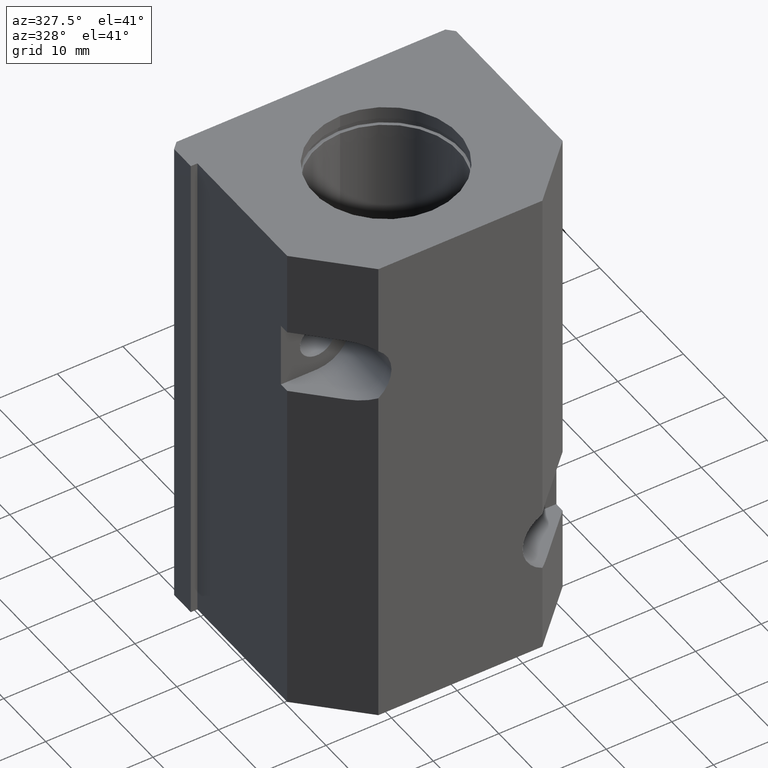
[diagram: clean part render]
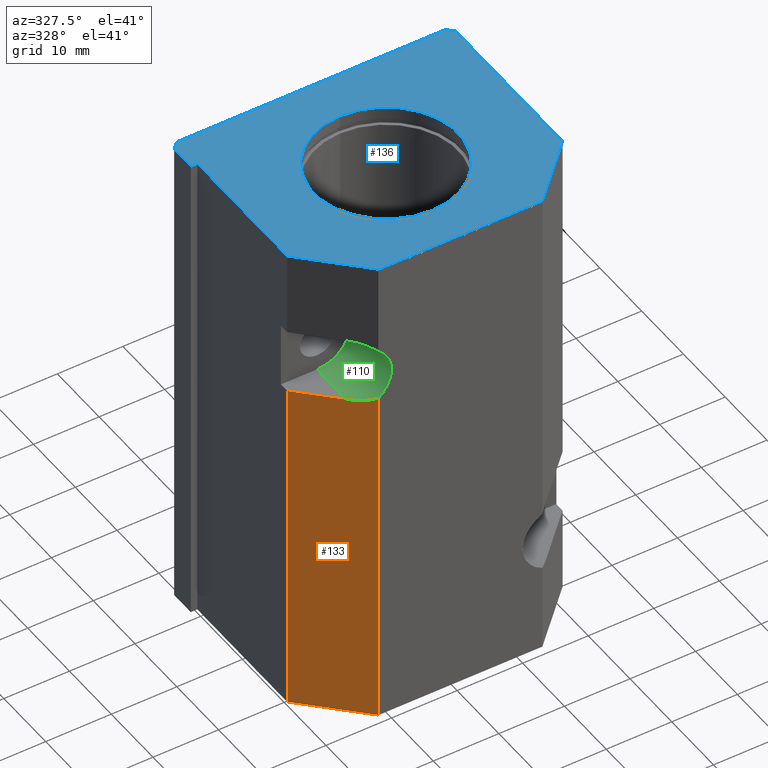
[diagram: same view with three faces highlighted in distinct colors, each labeled with its STEP entity id]
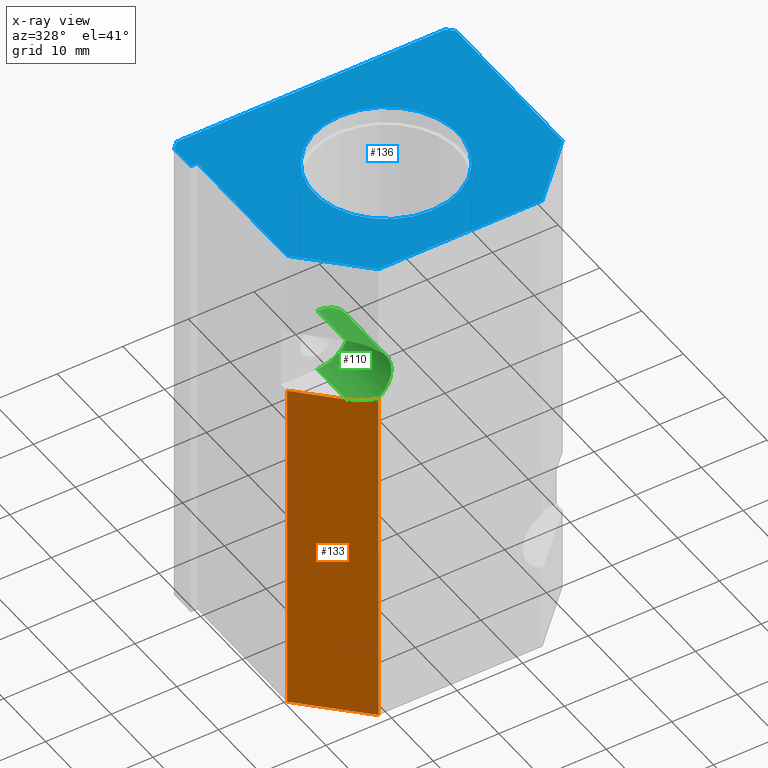
[diagram: x-ray of the same camera — body ghosted, the three highlighted faces saturated]
A machine part, auxiliary view with three faces highlighted in distinct colors.
The next image is the same camera in x-ray (body ghosted, the three faces saturated) — at least one of them is partly hidden behind the body in this view.
Their STEP definitions:

[orange] entity #133 — the highlighted planar face has unit normal (-0.7071, -0.7071, 0).
#133 = ADVANCED_FACE( '', ( #270 ), #271, .T. );
#270 = FACE_OUTER_BOUND( '', #413, .T. );
#271 = PLANE( '', #414 );
#413 = EDGE_LOOP( '', ( #862, #863, #864, #865, #866 ) );
#414 = AXIS2_PLACEMENT_3D( '', #867, #868, #869 );
#862 = ORIENTED_EDGE( '', *, *, #1011, .T. );
#863 = ORIENTED_EDGE( '', *, *, #1029, .F. );
#864 = ORIENTED_EDGE( '', *, *, #1058, .T. );
#865 = ORIENTED_EDGE( '', *, *, #1056, .T. );
#866 = ORIENTED_EDGE( '', *, *, #1013, .T. );
#867 = CARTESIAN_POINT( '', ( -12.0000000000000, 0.000000000000000, 0.000000000000000 ) );
#868 = DIRECTION( '', ( -0.707106781186548, -0.707106781186548, 0.000000000000000 ) );
#869 = DIRECTION( '', ( 0.707106781186548, -0.707106781186548, 0.000000000000000 ) );
#1011 = EDGE_CURVE( '', #1236, #1234, #1237, .T. );
#1013 = EDGE_CURVE( '', #1239, #1236, #1240, .T. );
#1029 = EDGE_CURVE( '', #1265, #1234, #1267, .T. );
#1056 = EDGE_CURVE( '', #1301, #1239, #1302, .T. );
#1058 = EDGE_CURVE( '', #1265, #1301, #1304, .T. );
#1234 = VERTEX_POINT( '', #1571 );
#1236 = VERTEX_POINT( '', #1574 );
#1237 = LINE( '', #1575, #1576 );
#1239 = VERTEX_POINT( '', #1579 );
#1240 = ELLIPSE( '', #1580, 7.07106781186548, 5.00000000000000 );
#1265 = VERTEX_POINT( '', #1617 );
#1267 = LINE( '', #1620, #1621 );
#1301 = VERTEX_POINT( '', #1667 );
#1302 = LINE( '', #1668, #1669 );
#1304 = LINE( '', #1672, #1673 );
#1571 = CARTESIAN_POINT( '', ( -20.5000000000000, 8.50000000000000, 53.0000000000000 ) );
#1574 = CARTESIAN_POINT( '', ( -15.0000000000000, 3.00000000000000, 53.0000000000000 ) );
#1575 = CARTESIAN_POINT( '', ( -14.8750000000000, 2.87500000000000, 53.0000000000000 ) );
#1576 = VECTOR( '', #1875, 1.00000000000000 );
#1579 = CARTESIAN_POINT( '', ( -12.0000000000000, 0.000000000000000, 54.0000000000000 ) );
#1580 = AXIS2_PLACEMENT_3D( '', #1877, #1878, #1879 );
#1617 = CARTESIAN_POINT( '', ( -20.5000000000000, 8.50000000000000, 0.000000000000000 ) );
#1620 = CARTESIAN_POINT( '', ( -20.5000000000000, 8.50000000000000, 0.000000000000000 ) );
#1621 = VECTOR( '', #1899, 1.00000000000000 );
#1667 = CARTESIAN_POINT( '', ( -12.0000000000000, 0.000000000000000, 0.000000000000000 ) );
#1668 = CARTESIAN_POINT( '', ( -12.0000000000000, 0.000000000000000, 0.000000000000000 ) );
#1669 = VECTOR( '', #1954, 1.00000000000000 );
#1672 = CARTESIAN_POINT( '', ( -20.5000000000000, 8.50000000000000, 0.000000000000000 ) );
#1673 = VECTOR( '', #1956, 1.00000000000000 );
#1875 = DIRECTION( '', ( -0.707106781186548, 0.707106781186548, 0.000000000000000 ) );
#1877 = CARTESIAN_POINT( '', ( -15.0000000000000, 3.00000000000000, 58.0000000000000 ) );
#1878 = DIRECTION( '', ( 0.707106781186548, 0.707106781186548, 0.000000000000000 ) );
#1879 = DIRECTION( '', ( 0.707106781186547, -0.707106781186547, 0.000000000000000 ) );
#1899 = DIRECTION( '', ( 0.000000000000000, 0.000000000000000, 1.00000000000000 ) );
#1954 = DIRECTION( '', ( 0.000000000000000, 0.000000000000000, 1.00000000000000 ) );
#1956 = DIRECTION( '', ( 0.707106781186548, -0.707106781186548, 0.000000000000000 ) );

[blue] entity #136 — the highlighted planar face has unit normal (0, 0, 1).
#136 = ADVANCED_FACE( '', ( #276, #277 ), #278, .T. );
#276 = FACE_BOUND( '', #419, .T. );
#277 = FACE_OUTER_BOUND( '', #420, .T. );
#278 = PLANE( '', #421 );
#419 = EDGE_LOOP( '', ( #884, #885 ) );
#420 = EDGE_LOOP( '', ( #886, #887, #888, #889, #890, #891, #892, #893, #894, #895 ) );
#421 = AXIS2_PLACEMENT_3D( '', #896, #897, #898 );
#884 = ORIENTED_EDGE( '', *, *, #1045, .T. );
#885 = ORIENTED_EDGE( '', *, *, #915, .T. );
#886 = ORIENTED_EDGE( '', *, *, #1046, .F. );
#887 = ORIENTED_EDGE( '', *, *, #1062, .F. );
#888 = ORIENTED_EDGE( '', *, *, #1059, .F. );
#889 = ORIENTED_EDGE( '', *, *, #1026, .F. );
#890 = ORIENTED_EDGE( '', *, *, #1031, .F. );
#891 = ORIENTED_EDGE( '', *, *, #1055, .F. );
#892 = ORIENTED_EDGE( '', *, *, #1020, .F. );
#893 = ORIENTED_EDGE( '', *, *, #1024, .F. );
#894 = ORIENTED_EDGE( '', *, *, #1053, .F. );
#895 = ORIENTED_EDGE( '', *, *, #1050, .F. );
#896 = CARTESIAN_POINT( '', ( 0.000000000000000, 0.000000000000000, 76.0000000000000 ) );
#897 = DIRECTION( '', ( 0.000000000000000, 0.000000000000000, 1.00000000000000 ) );
#898 = DIRECTION( '', ( 1.00000000000000, 0.000000000000000, 0.000000000000000 ) );
#915 = EDGE_CURVE( '', #1067, #1064, #1068, .T. );
#1020 = EDGE_CURVE( '', #1249, #1251, #1252, .T. );
#1024 = EDGE_CURVE( '', #1256, #1249, #1258, .T. );
#1026 = EDGE_CURVE( '', #1259, #1261, #1262, .T. );
#1031 = EDGE_CURVE( '', #1268, #1259, #1270, .T. );
#1045 = EDGE_CURVE( '', #1064, #1067, #1284, .T. );
#1046 = EDGE_CURVE( '', #1285, #1286, #1287, .T. );
#1050 = EDGE_CURVE( '', #1286, #1293, #1294, .T. );
#1053 = EDGE_CURVE( '', #1293, #1256, #1298, .T. );
#1055 = EDGE_CURVE( '', #1251, #1268, #1300, .T. );
#1059 = EDGE_CURVE( '', #1261, #1305, #1306, .T. );
#1062 = EDGE_CURVE( '', #1305, #1285, #1310, .T. );
#1064 = VERTEX_POINT( '', #1312 );
#1067 = VERTEX_POINT( '', #1316 );
#1068 = CIRCLE( '', #1317, 11.0000000000000 );
#1249 = VERTEX_POINT( '', #1592 );
#1251 = VERTEX_POINT( '', #1595 );
#1252 = LINE( '', #1596, #1597 );
#1256 = VERTEX_POINT( '', #1603 );
#1258 = LINE( '', #1606, #1607 );
#1259 = VERTEX_POINT( '', #1608 );
#1261 = VERTEX_POINT( '', #1611 );
#1262 = LINE( '', #1612, #1613 );
#1268 = VERTEX_POINT( '', #1622 );
#1270 = LINE( '', #1625, #1626 );
#1284 = CIRCLE( '', #1640, 11.0000000000000 );
#1285 = VERTEX_POINT( '', #1641 );
#1286 = VERTEX_POINT( '', #1642 );
#1287 = LINE( '', #1643, #1644 );
#1293 = VERTEX_POINT( '', #1653 );
#1294 = LINE( '', #1654, #1655 );
#1298 = LINE( '', #1661, #1662 );
#1300 = LINE( '', #1665, #1666 );
#1305 = VERTEX_POINT( '', #1674 );
#1306 = LINE( '', #1675, #1676 );
#1310 = LINE( '', #1682, #1683 );
#1312 = CARTESIAN_POINT( '', ( -2.69413397840923E-015, 28.0000000000000, 76.0000000000000 ) );
#1316 = CARTESIAN_POINT( '', ( 1.34706698920474E-015, 6.00000000000000, 76.0000000000000 ) );
#1317 = AXIS2_PLACEMENT_3D( '', #1687, #1688, #1689 );
#1592 = CARTESIAN_POINT( '', ( 21.5000000000000, 8.50000000000000, 76.0000000000000 ) );
#1595 = CARTESIAN_POINT( '', ( 13.0000000000000, 0.000000000000000, 76.0000000000000 ) );
#1596 = CARTESIAN_POINT( '', ( 13.0000000000000, 0.000000000000000, 76.0000000000000 ) );
#1597 = VECTOR( '', #1890, 1.00000000000000 );
#1603 = CARTESIAN_POINT( '', ( 21.5000000000000, 34.0000000000000, 76.0000000000000 ) );
#1606 = CARTESIAN_POINT( '', ( 21.5000000000000, 8.50000000000000, 76.0000000000000 ) );
#1607 = VECTOR( '', #1894, 1.00000000000000 );
#1608 = CARTESIAN_POINT( '', ( -20.5000000000000, 8.50000000000000, 76.0000000000000 ) );
#1611 = CARTESIAN_POINT( '', ( -20.5000000000000, 30.0000000000000, 76.0000000000000 ) );
#1612 = CARTESIAN_POINT( '', ( -20.5000000000000, 30.0000000000000, 76.0000000000000 ) );
#1613 = VECTOR( '', #1896, 1.00000000000000 );
#1622 = CARTESIAN_POINT( '', ( -12.0000000000000, 0.000000000000000, 76.0000000000000 ) );
#1625 = CARTESIAN_POINT( '', ( -20.5000000000000, 8.50000000000000, 76.0000000000000 ) );
#1626 = VECTOR( '', #1901, 1.00000000000000 );
#1640 = AXIS2_PLACEMENT_3D( '', #1941, #1942, #1943 );
#1641 = CARTESIAN_POINT( '', ( -21.5000000000000, 34.0000000000000, 76.0000000000000 ) );
#1642 = CARTESIAN_POINT( '', ( -20.5000000000000, 35.0000000000000, 76.0000000000000 ) );
#1643 = CARTESIAN_POINT( '', ( -20.5000000000000, 35.0000000000000, 76.0000000000000 ) );
#1644 = VECTOR( '', #1944, 1.00000000000000 );
#1653 = CARTESIAN_POINT( '', ( 20.5000000000000, 35.0000000000000, 76.0000000000000 ) );
#1654 = CARTESIAN_POINT( '', ( 20.5000000000000, 35.0000000000000, 76.0000000000000 ) );
#1655 = VECTOR( '', #1948, 1.00000000000000 );
#1661 = CARTESIAN_POINT( '', ( 21.5000000000000, 34.0000000000000, 76.0000000000000 ) );
#1662 = VECTOR( '', #1951, 1.00000000000000 );
#1665 = CARTESIAN_POINT( '', ( -12.0000000000000, 0.000000000000000, 76.0000000000000 ) );
#1666 = VECTOR( '', #1953, 1.00000000000000 );
#1674 = CARTESIAN_POINT( '', ( -21.5000000000000, 30.0000000000000, 76.0000000000000 ) );
#1675 = CARTESIAN_POINT( '', ( -21.5000000000000, 30.0000000000000, 76.0000000000000 ) );
#1676 = VECTOR( '', #1957, 1.00000000000000 );
#1682 = CARTESIAN_POINT( '', ( -21.5000000000000, 34.0000000000000, 76.0000000000000 ) );
#1683 = VECTOR( '', #1960, 1.00000000000000 );
#1687 = CARTESIAN_POINT( '', ( 0.000000000000000, 17.0000000000000, 76.0000000000000 ) );
#1688 = DIRECTION( '', ( -0.000000000000000, 0.000000000000000, -1.00000000000000 ) );
#1689 = DIRECTION( '', ( -2.44921270764487E-016, 1.00000000000000, 0.000000000000000 ) );
#1890 = DIRECTION( '', ( -0.707106781186548, -0.707106781186548, -0.000000000000000 ) );
#1894 = DIRECTION( '', ( -0.000000000000000, -1.00000000000000, -0.000000000000000 ) );
#1896 = DIRECTION( '', ( 0.000000000000000, 1.00000000000000, 0.000000000000000 ) );
#1901 = DIRECTION( '', ( -0.707106781186548, 0.707106781186548, 0.000000000000000 ) );
#1941 = CARTESIAN_POINT( '', ( 0.000000000000000, 17.0000000000000, 76.0000000000000 ) );
#1942 = DIRECTION( '', ( -0.000000000000000, 0.000000000000000, -1.00000000000000 ) );
#1943 = DIRECTION( '', ( -2.44921270764487E-016, 1.00000000000000, 0.000000000000000 ) );
#1944 = DIRECTION( '', ( 0.707106781186547, 0.707106781186547, 0.000000000000000 ) );
#1948 = DIRECTION( '', ( 1.00000000000000, 0.000000000000000, 0.000000000000000 ) );
#1951 = DIRECTION( '', ( 0.707106781186547, -0.707106781186547, 0.000000000000000 ) );
#1953 = DIRECTION( '', ( -1.00000000000000, -0.000000000000000, -0.000000000000000 ) );
#1957 = DIRECTION( '', ( -1.00000000000000, -0.000000000000000, -0.000000000000000 ) );
#1960 = DIRECTION( '', ( 0.000000000000000, 1.00000000000000, 0.000000000000000 ) );

[green] entity #110 — the highlighted cylindrical surface (partial cylindrical patch) has radius 5 mm, axis along (-0, -1, -0).
#110 = ADVANCED_FACE( '', ( #214 ), #215, .F. );
#214 = FACE_OUTER_BOUND( '', #357, .T. );
#215 = CYLINDRICAL_SURFACE( '', #358, 5.00000000000000 );
#357 = EDGE_LOOP( '', ( #676, #677, #678, #679, #680, #681 ) );
#358 = AXIS2_PLACEMENT_3D( '', #682, #683, #684 );
#676 = ORIENTED_EDGE( '', *, *, #1013, .F. );
#677 = ORIENTED_EDGE( '', *, *, #1014, .F. );
#678 = ORIENTED_EDGE( '', *, *, #1015, .F. );
#679 = ORIENTED_EDGE( '', *, *, #1006, .T. );
#680 = ORIENTED_EDGE( '', *, *, #1001, .F. );
#681 = ORIENTED_EDGE( '', *, *, #1012, .F. );
#682 = CARTESIAN_POINT( '', ( -15.0000000000000, 0.000000000000000, 58.0000000000000 ) );
#683 = DIRECTION( '', ( -0.000000000000000, -1.00000000000000, -0.000000000000000 ) );
#684 = DIRECTION( '', ( 0.000000000000000, 0.000000000000000, 1.00000000000000 ) );
#1001 = EDGE_CURVE( '', #1218, #1220, #1221, .T. );
#1006 = EDGE_CURVE( '', #1228, #1220, #1229, .T. );
#1012 = EDGE_CURVE( '', #1236, #1218, #1238, .T. );
#1013 = EDGE_CURVE( '', #1239, #1236, #1240, .T. );
#1014 = EDGE_CURVE( '', #1241, #1239, #1242, .T. );
#1015 = EDGE_CURVE( '', #1228, #1241, #1243, .T. );
#1218 = VERTEX_POINT( '', #1546 );
#1220 = VERTEX_POINT( '', #1549 );
#1221 = CIRCLE( '', #1550, 5.00000000000000 );
#1228 = VERTEX_POINT( '', #1561 );
#1229 = LINE( '', #1562, #1563 );
#1236 = VERTEX_POINT( '', #1574 );
#1238 = LINE( '', #1577, #1578 );
#1239 = VERTEX_POINT( '', #1579 );
#1240 = ELLIPSE( '', #1580, 7.07106781186548, 5.00000000000000 );
#1241 = VERTEX_POINT( '', #1581 );
#1242 = CIRCLE( '', #1582, 5.00000000000000 );
#1243 = ELLIPSE( '', #1583, 7.07106781186548, 5.00000000000000 );
#1546 = CARTESIAN_POINT( '', ( -15.0000000000000, 10.0000000000000, 53.0000000000000 ) );
#1549 = CARTESIAN_POINT( '', ( -15.0000000000000, 10.0000000000000, 63.0000000000000 ) );
#1550 = AXIS2_PLACEMENT_3D( '', #1863, #1864, #1865 );
#1561 = CARTESIAN_POINT( '', ( -15.0000000000000, 3.00000000000000, 63.0000000000000 ) );
#1562 = CARTESIAN_POINT( '', ( -15.0000000000000, 0.000000000000000, 63.0000000000000 ) );
#1563 = VECTOR( '', #1870, 1.00000000000000 );
#1574 = CARTESIAN_POINT( '', ( -15.0000000000000, 3.00000000000000, 53.0000000000000 ) );
#1577 = CARTESIAN_POINT( '', ( -15.0000000000000, 0.000000000000000, 53.0000000000000 ) );
#1578 = VECTOR( '', #1876, 1.00000000000000 );
#1579 = CARTESIAN_POINT( '', ( -12.0000000000000, 0.000000000000000, 54.0000000000000 ) );
#1580 = AXIS2_PLACEMENT_3D( '', #1877, #1878, #1879 );
#1581 = CARTESIAN_POINT( '', ( -12.0000000000000, 0.000000000000000, 62.0000000000000 ) );
#1582 = AXIS2_PLACEMENT_3D( '', #1880, #1881, #1882 );
#1583 = AXIS2_PLACEMENT_3D( '', #1883, #1884, #1885 );
#1863 = CARTESIAN_POINT( '', ( -15.0000000000000, 10.0000000000000, 58.0000000000000 ) );
#1864 = DIRECTION( '', ( 0.000000000000000, -1.00000000000000, 0.000000000000000 ) );
#1865 = DIRECTION( '', ( 0.000000000000000, 0.000000000000000, 1.00000000000000 ) );
#1870 = DIRECTION( '', ( 0.000000000000000, 1.00000000000000, 0.000000000000000 ) );
#1876 = DIRECTION( '', ( 0.000000000000000, 1.00000000000000, 0.000000000000000 ) );
#1877 = CARTESIAN_POINT( '', ( -15.0000000000000, 3.00000000000000, 58.0000000000000 ) );
#1878 = DIRECTION( '', ( 0.707106781186548, 0.707106781186548, 0.000000000000000 ) );
#1879 = DIRECTION( '', ( 0.707106781186547, -0.707106781186547, 0.000000000000000 ) );
#1880 = CARTESIAN_POINT( '', ( -15.0000000000000, 0.000000000000000, 58.0000000000000 ) );
#1881 = DIRECTION( '', ( -0.000000000000000, 1.00000000000000, 0.000000000000000 ) );
#1882 = DIRECTION( '', ( 0.000000000000000, 0.000000000000000, 1.00000000000000 ) );
#1883 = CARTESIAN_POINT( '', ( -15.0000000000000, 3.00000000000000, 58.0000000000000 ) );
#1884 = DIRECTION( '', ( 0.707106781186548, 0.707106781186548, 0.000000000000000 ) );
#1885 = DIRECTION( '', ( 0.707106781186547, -0.707106781186547, 0.000000000000000 ) );